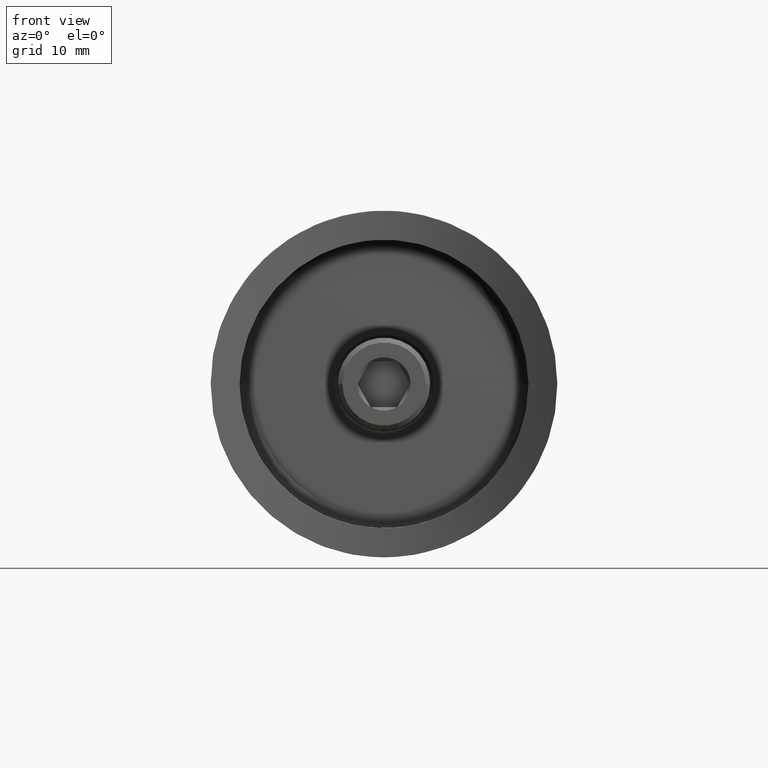
[diagram: clean part render]
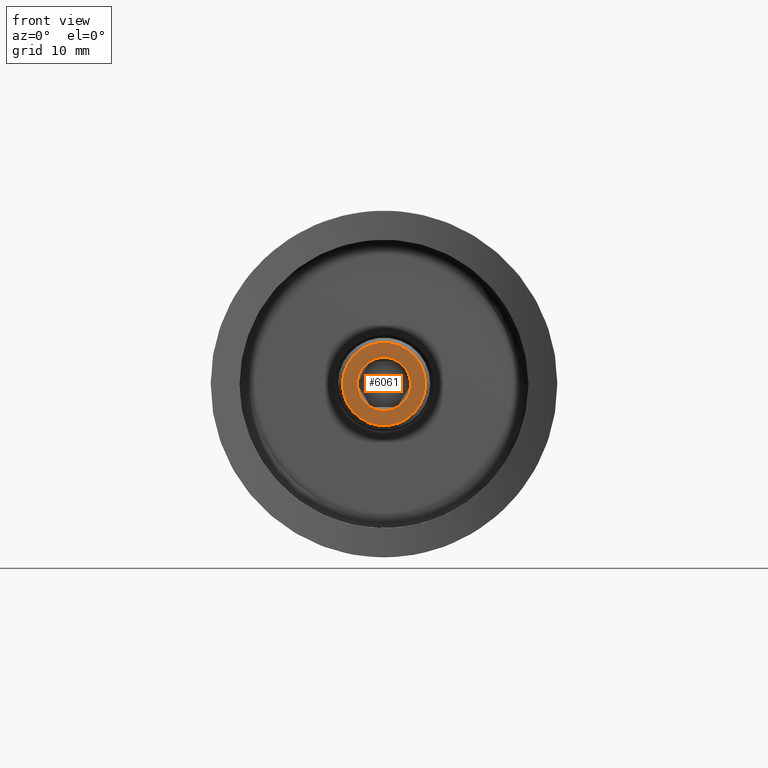
[diagram: same view with one face highlighted and labeled with its STEP entity id]
A machine part, front view. The second image highlights one B-rep face of the part: STEP entity #6061.
In plain terms, the highlighted planar face has unit normal (0, 1, 0).
Its self-contained STEP definition (entity closure, byte-faithful):
#355 = ORIENTED_EDGE ( 'NONE', *, *, #13050, .T. ) ;
#1145 = CARTESIAN_POINT ( 'NONE',  ( 0.000000000000000000, 0.000000000000000000, 0.000000000000000000 ) ) ;
#1272 = CARTESIAN_POINT ( 'NONE',  ( 0.000000000000000000, 0.000000000000000000, 0.000000000000000000 ) ) ;
#1965 = AXIS2_PLACEMENT_3D ( 'NONE', #1145, #7827, #2448 ) ;
#2422 = DIRECTION ( 'NONE',  ( -1.000000000000000000, 0.000000000000000000, 0.000000000000000000 ) ) ;
#2448 = DIRECTION ( 'NONE',  ( -1.000000000000000000, 0.000000000000000000, 0.000000000000000000 ) ) ;
#2676 = DIRECTION ( 'NONE',  ( -1.000000000000000000, 0.000000000000000000, 0.000000000000000000 ) ) ;
#3179 = PLANE ( 'NONE',  #15444 ) ;
#4718 = EDGE_CURVE ( 'NONE', #9705, #15305, #7266, .T. ) ;
#4755 = CIRCLE ( 'NONE', #16902, 2.310000000000000053 ) ;
#4946 = EDGE_CURVE ( 'NONE', #15513, #8512, #10994, .T. ) ;
#5817 = DIRECTION ( 'NONE',  ( 0.000000000000000000, 0.000000000000000000, -1.000000000000000000 ) ) ;
#6061 = ADVANCED_FACE ( 'NONE', ( #16165, #11600 ), #3179, .F. ) ;
#6775 = CARTESIAN_POINT ( 'NONE',  ( 0.000000000000000000, 0.000000000000000000, 0.000000000000000000 ) ) ;
#7266 = CIRCLE ( 'NONE', #1965, 3.600000000000000533 ) ;
#7710 = CARTESIAN_POINT ( 'NONE',  ( 0.000000000000000000, 0.000000000000000000, 0.000000000000000000 ) ) ;
#7827 = DIRECTION ( 'NONE',  ( -0.000000000000000000, -0.000000000000000000, 1.000000000000000000 ) ) ;
#7975 = ORIENTED_EDGE ( 'NONE', *, *, #14423, .T. ) ;
#8126 = DIRECTION ( 'NONE',  ( -0.000000000000000000, -0.000000000000000000, 1.000000000000000000 ) ) ;
#8227 = EDGE_LOOP ( 'NONE', ( #355, #16388 ) ) ;
#8512 = VERTEX_POINT ( 'NONE', #12590 ) ;
#8779 = DIRECTION ( 'NONE',  ( -1.000000000000000000, 0.000000000000000000, 0.000000000000000000 ) ) ;
#8953 = CIRCLE ( 'NONE', #12041, 3.600000000000000533 ) ;
#9705 = VERTEX_POINT ( 'NONE', #15396 ) ;
#9966 = DIRECTION ( 'NONE',  ( 0.000000000000000000, 0.000000000000000000, -1.000000000000000000 ) ) ;
#10994 = CIRCLE ( 'NONE', #14749, 2.310000000000000053 ) ;
#11600 = FACE_OUTER_BOUND ( 'NONE', #8227, .T. ) ;
#12041 = AXIS2_PLACEMENT_3D ( 'NONE', #6775, #8126, #2676 ) ;
#12251 = EDGE_LOOP ( 'NONE', ( #7975, #13262 ) ) ;
#12590 = CARTESIAN_POINT ( 'NONE',  ( 2.310000000000000497, 0.000000000000000000, 0.000000000000000000 ) ) ;
#13050 = EDGE_CURVE ( 'NONE', #15305, #9705, #8953, .T. ) ;
#13262 = ORIENTED_EDGE ( 'NONE', *, *, #4946, .T. ) ;
#13780 = CARTESIAN_POINT ( 'NONE',  ( 0.000000000000000000, 0.000000000000000000, 0.000000000000000000 ) ) ;
#13955 = CARTESIAN_POINT ( 'NONE',  ( -3.600000000000000533, 0.000000000000000000, 0.000000000000000000 ) ) ;
#14355 = CARTESIAN_POINT ( 'NONE',  ( -2.310000000000000497, 2.828934106030386794E-16, 0.000000000000000000 ) ) ;
#14423 = EDGE_CURVE ( 'NONE', #8512, #15513, #4755, .T. ) ;
#14749 = AXIS2_PLACEMENT_3D ( 'NONE', #7710, #16970, #2422 ) ;
#15126 = DIRECTION ( 'NONE',  ( -1.000000000000000000, 0.000000000000000000, 0.000000000000000000 ) ) ;
#15305 = VERTEX_POINT ( 'NONE', #13955 ) ;
#15396 = CARTESIAN_POINT ( 'NONE',  ( 3.600000000000000533, 4.653657836759942730E-16, 0.000000000000000000 ) ) ;
#15444 = AXIS2_PLACEMENT_3D ( 'NONE', #13780, #5817, #15126 ) ;
#15513 = VERTEX_POINT ( 'NONE', #14355 ) ;
#16165 = FACE_BOUND ( 'NONE', #12251, .T. ) ;
#16388 = ORIENTED_EDGE ( 'NONE', *, *, #4718, .T. ) ;
#16902 = AXIS2_PLACEMENT_3D ( 'NONE', #1272, #9966, #8779 ) ;
#16970 = DIRECTION ( 'NONE',  ( 0.000000000000000000, 0.000000000000000000, -1.000000000000000000 ) ) ;